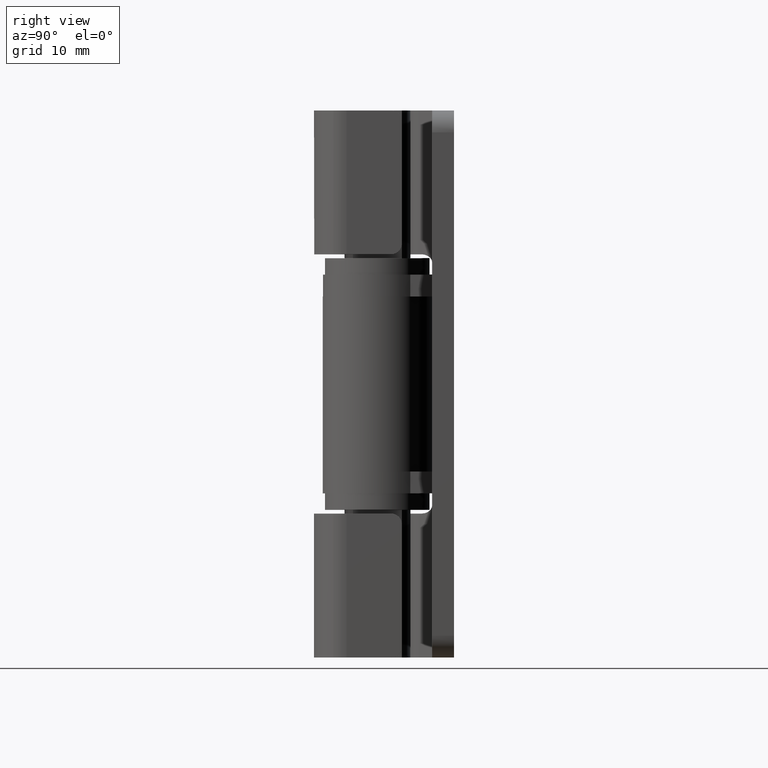
[diagram: clean part render]
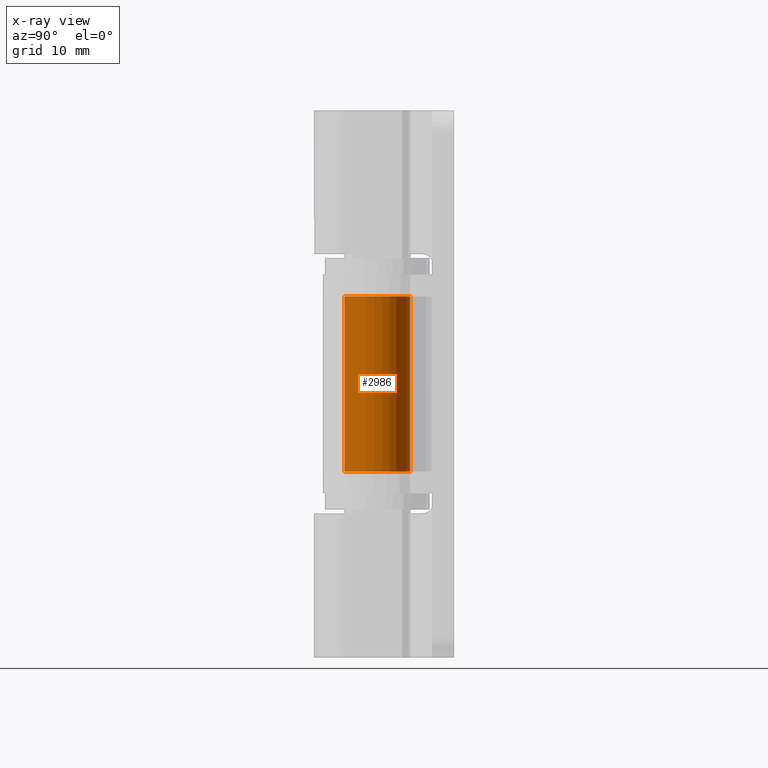
[diagram: x-ray — body ghosted, one internal face saturated and labeled with its STEP entity id]
A machine part, right view, then the same camera in x-ray: the body is ghosted and one INTERNAL B-rep face — a face not visible from any outside direction — is saturated and labeled: STEP entity #2986.
In plain terms, the highlighted face is a freeform B-spline surface patch.
Its self-contained STEP definition (entity closure, byte-faithful):
#2735=CARTESIAN_POINT('',(-2.236067977499790,2.0,33.0));
#2736=VERTEX_POINT('',#2735);
#2777=CARTESIAN_POINT('',(-1.148577E-015,3.0,33.0));
#2778=VERTEX_POINT('',#2777);
#2784=CARTESIAN_POINT('',(0.0,3.0,33.0));
#2785=CARTESIAN_POINT('',(2.427297197249218,3.0,33.0));
#2786=CARTESIAN_POINT('',(2.933925558239122,0.626163571849444,33.0));
#2787=CARTESIAN_POINT('',(3.440553919229027,-1.747672856301111,33.0));
#2788=CARTESIAN_POINT('',(1.224744871391590,-2.738612787525830,33.0));
#2789=CARTESIAN_POINT('',(-0.991064176445848,-3.729552718750549,33.0));
#2790=CARTESIAN_POINT('',(-2.422665142722557,-1.769376615149271,33.0));
#2791=CARTESIAN_POINT('',(-3.854266108999268,0.190799488452010,33.0));
#2792=CARTESIAN_POINT('',(-2.236067977499790,2.0,33.0));
#2800=(BOUNDED_CURVE()B_SPLINE_CURVE(2,(#2784,#2785,#2786,#2787,#2788,#2789,#2790,#2791,#2792),.UNSPECIFIED.,.F.,.U.)B_SPLINE_CURVE_WITH_KNOTS((3,2,2,2,3),(0.0,0.250000000000000,0.500000000000000,0.750000000000000,1.0),.UNSPECIFIED.)CURVE()GEOMETRIC_REPRESENTATION_ITEM()RATIONAL_B_SPLINE_CURVE((1.0,0.777406325744935,1.0,0.777406325744935,1.0,0.777406325744935,1.0,0.777406325744935,1.0))REPRESENTATION_ITEM(''));
#2801=EDGE_CURVE('',#2778,#2736,#2800,.T.);
#2811=CARTESIAN_POINT('',(-1.148577E-015,3.0,17.0));
#2812=VERTEX_POINT('',#2811);
#2853=CARTESIAN_POINT('',(-2.236067977499790,2.0,17.0));
#2854=VERTEX_POINT('',#2853);
#2860=CARTESIAN_POINT('',(0.0,3.0,17.0));
#2861=CARTESIAN_POINT('',(2.427297197249218,3.0,17.0));
#2862=CARTESIAN_POINT('',(2.933925558239122,0.626163571849444,17.0));
#2863=CARTESIAN_POINT('',(3.440553919229027,-1.747672856301111,17.0));
#2864=CARTESIAN_POINT('',(1.224744871391590,-2.738612787525830,17.0));
#2865=CARTESIAN_POINT('',(-0.991064176445848,-3.729552718750549,17.0));
#2866=CARTESIAN_POINT('',(-2.422665142722557,-1.769376615149271,17.0));
#2867=CARTESIAN_POINT('',(-3.854266108999268,0.190799488452010,17.0));
#2868=CARTESIAN_POINT('',(-2.236067977499790,2.0,17.0));
#2876=(BOUNDED_CURVE()B_SPLINE_CURVE(2,(#2860,#2861,#2862,#2863,#2864,#2865,#2866,#2867,#2868),.UNSPECIFIED.,.F.,.U.)B_SPLINE_CURVE_WITH_KNOTS((3,2,2,2,3),(0.0,0.250000000000000,0.500000000000000,0.750000000000000,1.0),.UNSPECIFIED.)CURVE()GEOMETRIC_REPRESENTATION_ITEM()RATIONAL_B_SPLINE_CURVE((1.0,0.777406325744935,1.0,0.777406325744935,1.0,0.777406325744935,1.0,0.777406325744935,1.0))REPRESENTATION_ITEM(''));
#2877=EDGE_CURVE('',#2812,#2854,#2876,.T.);
#2934=CARTESIAN_POINT('',(-1.148577E-015,3.0,17.0));
#2935=CARTESIAN_POINT('',(-1.148577E-015,3.0,33.0));
#2936=QUASI_UNIFORM_CURVE('',1,(#2934,#2935),.UNSPECIFIED.,.F.,.U.);
#2937=EDGE_CURVE('',#2812,#2778,#2936,.T.);
#2950=CARTESIAN_POINT('',(-0.088458881849683,2.998695554107135,16.600000000000001));
#2951=CARTESIAN_POINT('',(-0.088458881849683,2.998695554107135,33.410000000000011));
#2952=CARTESIAN_POINT('',(2.405529884592303,3.072266029550355,16.600000000000005));
#2953=CARTESIAN_POINT('',(2.405529884592303,3.072266029550355,33.410000000000011));
#2954=CARTESIAN_POINT('',(2.932361769047728,0.633446489790001,16.600000000000001));
#2955=CARTESIAN_POINT('',(2.932361769047728,0.633446489790001,33.410000000000011));
#2956=CARTESIAN_POINT('',(3.459193653503154,-1.805373049970352,16.600000000000005));
#2957=CARTESIAN_POINT('',(3.459193653503154,-1.805373049970352,33.410000000000011));
#2958=CARTESIAN_POINT('',(1.157219857680674,-2.767822646231061,16.600000000000001));
#2959=CARTESIAN_POINT('',(1.157219857680674,-2.767822646231061,33.410000000000011));
#2960=CARTESIAN_POINT('',(-1.144753938141805,-3.730272242491771,16.600000000000005));
#2961=CARTESIAN_POINT('',(-1.144753938141805,-3.730272242491771,33.410000000000011));
#2962=CARTESIAN_POINT('',(-2.510588631298957,-1.642237718599967,16.600000000000001));
#2963=CARTESIAN_POINT('',(-2.510588631298957,-1.642237718599967,33.410000000000011));
#2964=CARTESIAN_POINT('',(-3.876423324456107,0.445796805291835,16.600000000000005));
#2965=CARTESIAN_POINT('',(-3.876423324456107,0.445796805291835,33.410000000000011));
#2966=CARTESIAN_POINT('',(-2.072256734719427,2.169274538966881,16.600000000000001));
#2967=CARTESIAN_POINT('',(-2.072256734719427,2.169274538966881,33.410000000000011));
#2975=(BOUNDED_SURFACE()B_SPLINE_SURFACE(1,2,((#2950,#2952,#2954,#2956,#2958,#2960,#2962,#2964,#2966),(#2951,#2953,#2955,#2957,#2959,#2961,#2963,#2965,#2967)),.UNSPECIFIED.,.F.,.F.,.U.)B_SPLINE_SURFACE_WITH_KNOTS((2,2),(3,2,2,2,3),(0.0,16.810000000000009),(0.0,4.338018179258182,8.676036358516363,13.014054537774550,17.352072717032730),.UNSPECIFIED.)GEOMETRIC_REPRESENTATION_ITEM()RATIONAL_B_SPLINE_SURFACE(((1.0,0.768841832073459,1.0,0.768841832073459,1.0,0.768841832073459,1.0,0.768841832073459,1.0),(1.0,0.768841832073459,1.0,0.768841832073459,1.0,0.768841832073459,1.0,0.768841832073459,1.0)))REPRESENTATION_ITEM('')SURFACE());
#2976=ORIENTED_EDGE('',*,*,#2801,.F.);
#2977=ORIENTED_EDGE('',*,*,#2937,.F.);
#2978=ORIENTED_EDGE('',*,*,#2877,.T.);
#2979=CARTESIAN_POINT('',(-2.236067977499790,2.0,17.0));
#2980=CARTESIAN_POINT('',(-2.236067977499790,2.0,33.0));
#2981=QUASI_UNIFORM_CURVE('',1,(#2979,#2980),.UNSPECIFIED.,.F.,.U.);
#2982=EDGE_CURVE('',#2854,#2736,#2981,.T.);
#2983=ORIENTED_EDGE('',*,*,#2982,.T.);
#2984=EDGE_LOOP('',(#2976,#2977,#2978,#2983));
#2985=FACE_OUTER_BOUND('',#2984,.T.);
#2986=ADVANCED_FACE('',(#2985),#2975,.F.);